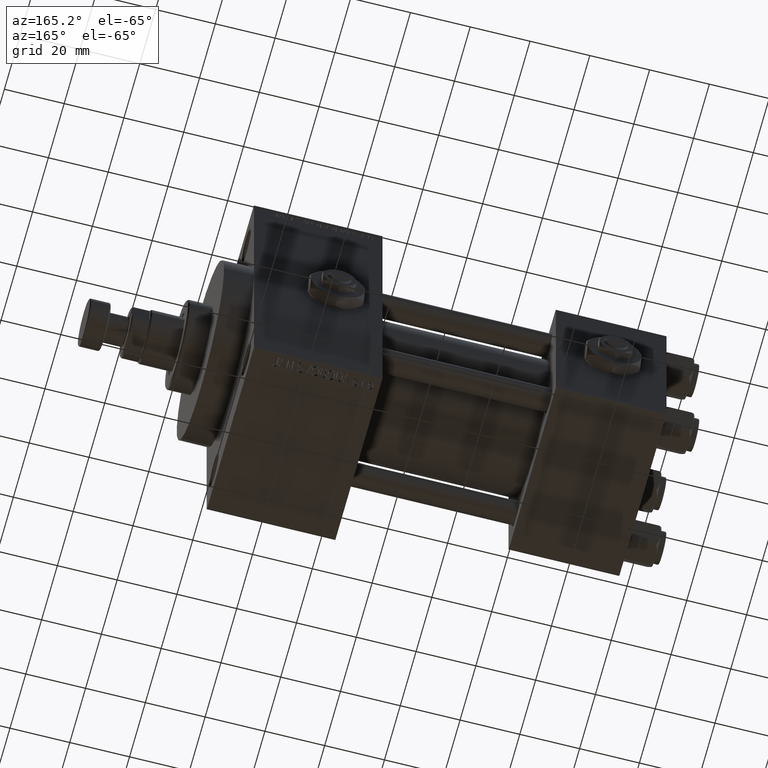
[diagram: clean part render]
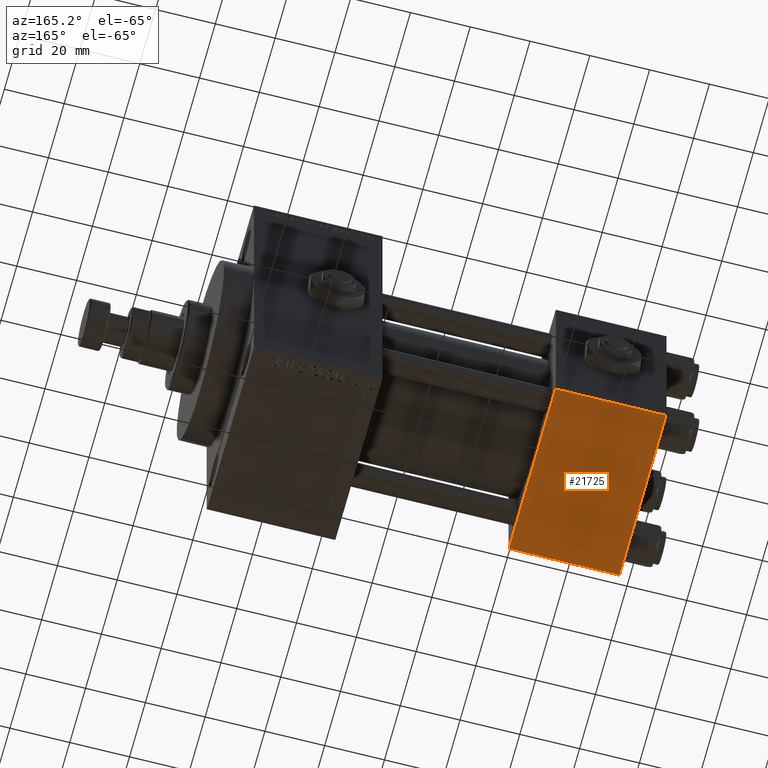
[diagram: same view with one face highlighted and labeled with its STEP entity id]
A machine part, auxiliary view. The second image highlights one B-rep face of the part: STEP entity #21725.
In plain terms, the highlighted planar face has unit normal (0, 0, -1).
Its self-contained STEP definition (entity closure, byte-faithful):
#1365 = DIRECTION ( 'NONE',  ( 0.000000000000000000, -1.000000000000000000, -1.156482317317871725E-16 ) ) ;
#6794 = CARTESIAN_POINT ( 'NONE',  ( 0.000000000000000000, -29.50000000000001066, -30.00000000000000711 ) ) ;
#7085 = VERTEX_POINT ( 'NONE', #15109 ) ;
#8909 = LINE ( 'NONE', #21229, #31528 ) ;
#9119 = VERTEX_POINT ( 'NONE', #36604 ) ;
#9570 = FACE_OUTER_BOUND ( 'NONE', #29944, .T. ) ;
#9819 = CARTESIAN_POINT ( 'NONE',  ( 37.00000000000000000, 29.99999999999999289, -30.00000000000000000 ) ) ;
#10020 = DIRECTION ( 'NONE',  ( 1.000000000000000000, 0.000000000000000000, 0.000000000000000000 ) ) ;
#13307 = LINE ( 'NONE', #29598, #31658 ) ;
#14443 = AXIS2_PLACEMENT_3D ( 'NONE', #9819, #24916, #32207 ) ;
#15109 = CARTESIAN_POINT ( 'NONE',  ( 37.00000000000000000, 29.49999999999997868, -30.00000000000000000 ) ) ;
#15530 = CARTESIAN_POINT ( 'NONE',  ( 0.000000000000000000, 29.49999999999997868, -30.00000000000000000 ) ) ;
#16408 = LINE ( 'NONE', #39541, #33262 ) ;
#19123 = VERTEX_POINT ( 'NONE', #41601 ) ;
#21229 = CARTESIAN_POINT ( 'NONE',  ( 37.00000000000000000, 29.99999999999999289, -30.00000000000000000 ) ) ;
#21725 = ADVANCED_FACE ( 'NONE', ( #9570 ), #28916, .T. ) ;
#22140 = DIRECTION ( 'NONE',  ( -1.000000000000000000, 0.000000000000000000, 0.000000000000000000 ) ) ;
#23649 = VERTEX_POINT ( 'NONE', #15530 ) ;
#24916 = DIRECTION ( 'NONE',  ( 0.000000000000000000, 1.156482317317871725E-16, -1.000000000000000000 ) ) ;
#27445 = DIRECTION ( 'NONE',  ( 0.000000000000000000, -1.000000000000000000, -1.156482317317871725E-16 ) ) ;
#28916 = PLANE ( 'NONE',  #14443 ) ;
#29598 = CARTESIAN_POINT ( 'NONE',  ( 37.00000000000000000, 29.49999999999997868, -30.00000000000000000 ) ) ;
#29944 = EDGE_LOOP ( 'NONE', ( #49683, #42071, #39621, #34747 ) ) ;
#31528 = VECTOR ( 'NONE', #1365, 1000.000000000000000 ) ;
#31658 = VECTOR ( 'NONE', #10020, 1000.000000000000000 ) ;
#32207 = DIRECTION ( 'NONE',  ( 0.000000000000000000, 1.000000000000000000, 1.156482317317871725E-16 ) ) ;
#33262 = VECTOR ( 'NONE', #27445, 1000.000000000000000 ) ;
#34747 = ORIENTED_EDGE ( 'NONE', *, *, #44173, .T. ) ;
#35290 = EDGE_CURVE ( 'NONE', #23649, #7085, #13307, .T. ) ;
#36604 = CARTESIAN_POINT ( 'NONE',  ( 37.00000000000000000, -29.50000000000000000, -30.00000000000000711 ) ) ;
#39541 = CARTESIAN_POINT ( 'NONE',  ( 0.000000000000000000, 29.99999999999999289, -30.00000000000000000 ) ) ;
#39621 = ORIENTED_EDGE ( 'NONE', *, *, #43885, .T. ) ;
#41601 = CARTESIAN_POINT ( 'NONE',  ( 0.000000000000000000, -29.50000000000000000, -30.00000000000000711 ) ) ;
#42071 = ORIENTED_EDGE ( 'NONE', *, *, #35290, .T. ) ;
#43885 = EDGE_CURVE ( 'NONE', #7085, #9119, #8909, .T. ) ;
#44173 = EDGE_CURVE ( 'NONE', #9119, #19123, #45267, .T. ) ;
#45267 = LINE ( 'NONE', #6794, #49189 ) ;
#47520 = EDGE_CURVE ( 'NONE', #23649, #19123, #16408, .T. ) ;
#49189 = VECTOR ( 'NONE', #22140, 1000.000000000000000 ) ;
#49683 = ORIENTED_EDGE ( 'NONE', *, *, #47520, .F. ) ;